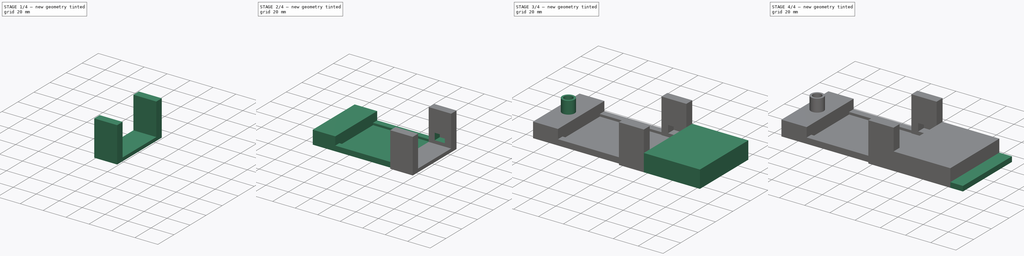
[diagram: build sequence overview — one tinted view per stage of 4, left to right]
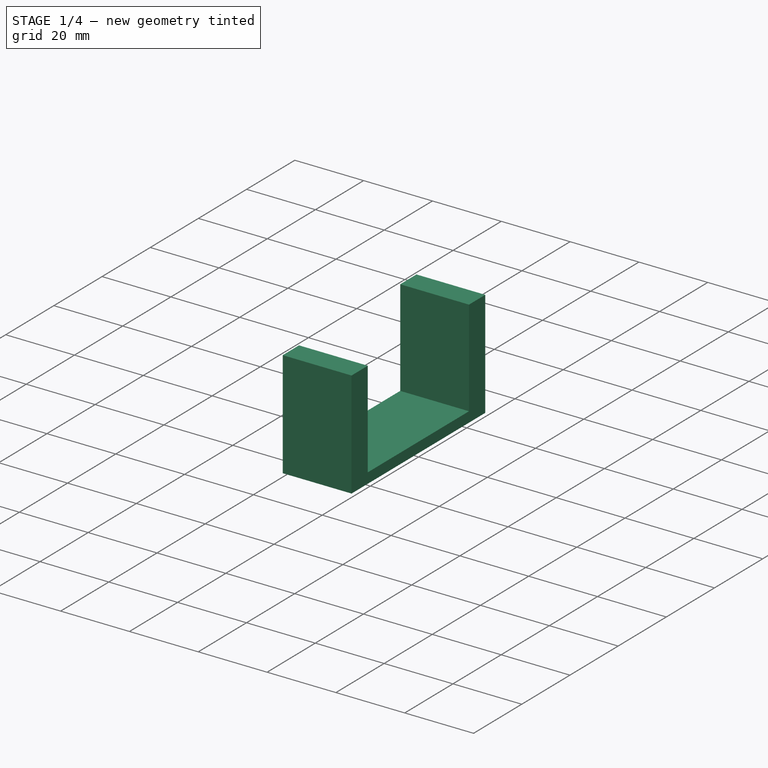
[diagram: stage 1 of 4 — iso view after this stage's code; geometry added in this stage tinted green]
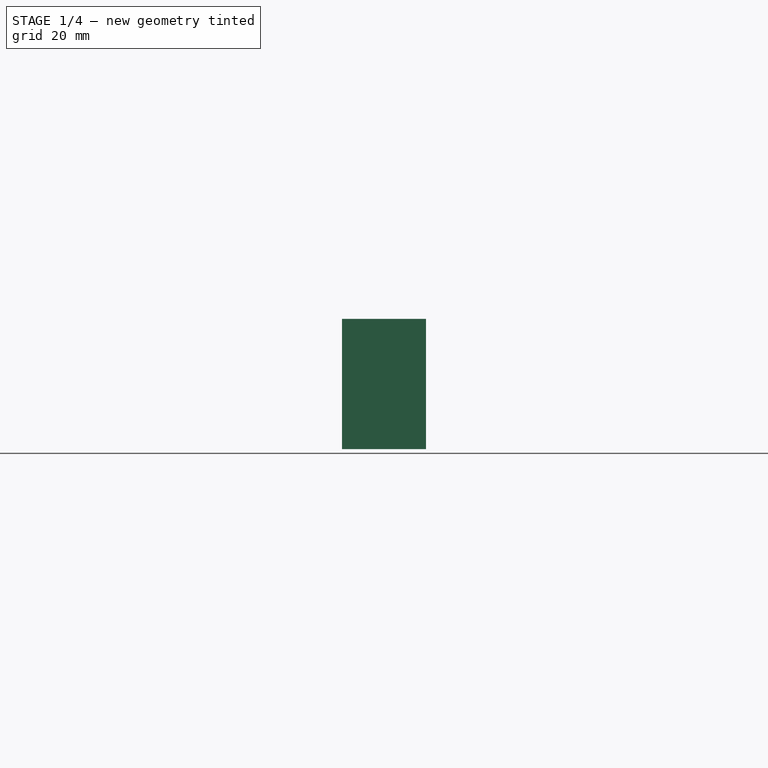
[diagram: stage 1 of 4 — front view after this stage's code; geometry added in this stage tinted green]
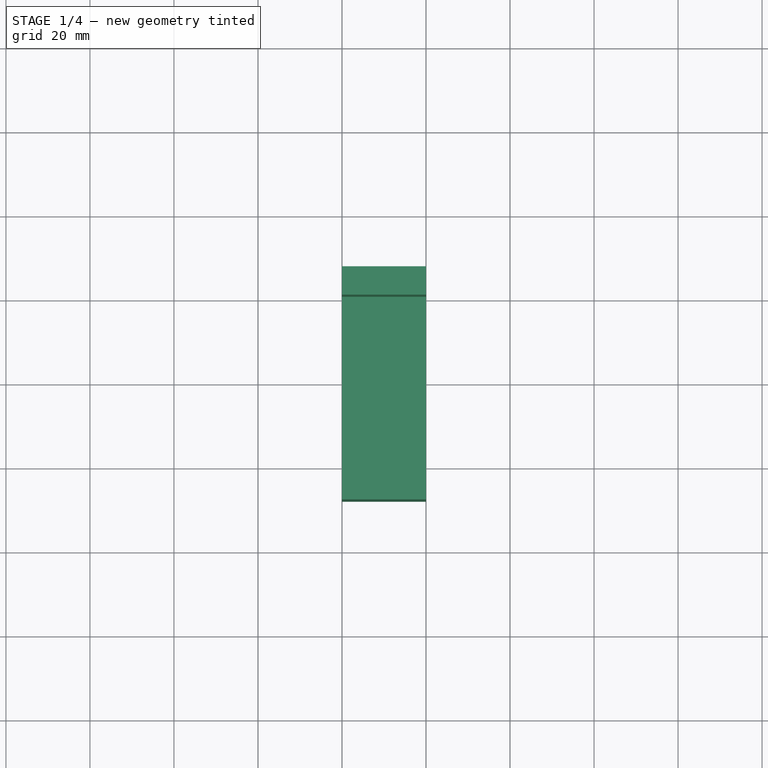
[diagram: stage 1 of 4 — top view after this stage's code; geometry added in this stage tinted green]
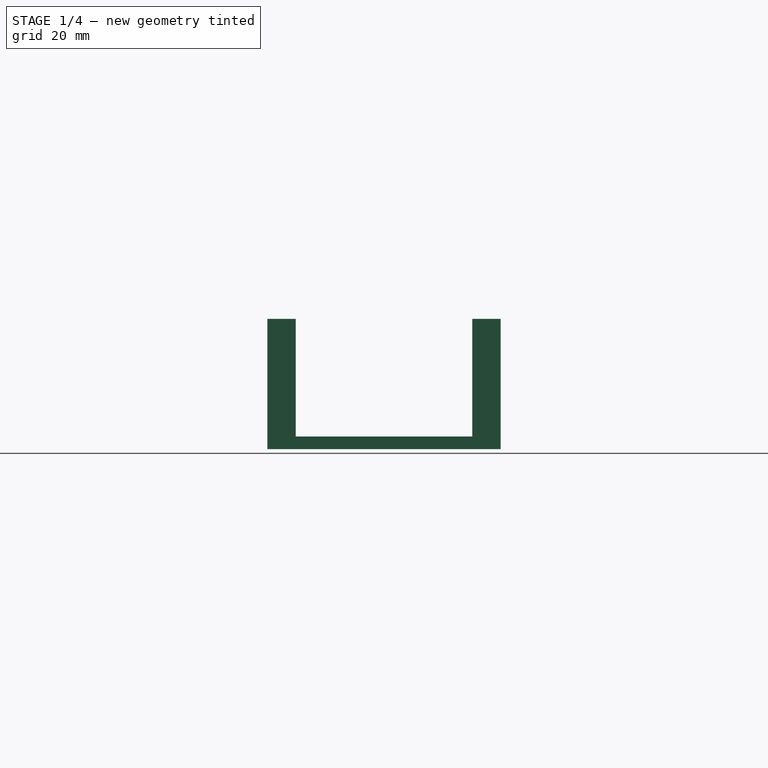
[diagram: stage 1 of 4 — right view after this stage's code; geometry added in this stage tinted green]
FCSTD DOCUMENT  (FreeCAD 0.20R29177 (Git))
Label: ServoHolder_v3
License: All rights reserved
LicenseURL: http://en.wikipedia.org/wiki/All_rights_reserved
objects: Sketcher::SketchObject×9, PartDesign::Pad×6, PartDesign::Pocket×3, PartDesign::Body×1, App::Part×1
note: 28 computed .brp shape members not serialized (recipe doc carries the construction recipe); baked Part::Feature solids carry a one-line shape summary decoded from their .brp

FEATURE [Sketcher::SketchObject] Sketch002  label="ServoHolder002"
  FullyConstrained = false
  MapMode = 4
  Placement = pos=(0,0,0) rot=(0.57735,0.57735,0.57735;2.0944rad)
  sketch-geometry (8):
    g0: LineSegment StartX=-27.8161 StartY=-22.5482 StartZ=0 EndX=27.6839 EndY=-22.5482 EndZ=0
    g1: LineSegment StartX=20.9339 StartY=-19.5482 StartZ=0 EndX=20.9339 EndY=8.45178 EndZ=0
    g2: LineSegment StartX=20.9339 StartY=8.45178 StartZ=0 EndX=27.6839 EndY=8.45178 EndZ=0
    g3: LineSegment StartX=-21.0661 StartY=-19.5482 StartZ=0 EndX=-21.0661 EndY=8.45178 EndZ=0
    g4: LineSegment StartX=-21.0661 StartY=8.45178 StartZ=0 EndX=-27.8161 EndY=8.45178 EndZ=0
    g5: LineSegment StartX=20.9339 StartY=-19.5482 StartZ=0 EndX=-21.0661 EndY=-19.5482 EndZ=0
    g6: LineSegment StartX=-27.8161 StartY=8.45178 StartZ=0 EndX=-27.8161 EndY=-22.5482 EndZ=0
    g7: LineSegment StartX=27.6839 StartY=8.45178 StartZ=0 EndX=27.6839 EndY=-22.5482 EndZ=0
  constraints (22):
    c: Horizontal(g0)
    c: Coincident(g1,g2)
    c: Horizontal(g2)
    c: Vertical(g1)
    c: Coincident(g3,g4)
    c: Horizontal(g4)
    c: Vertical(g3)
    c: Coincident(g5,g1)
    c: Coincident(g5,g3)
    c: Horizontal(g5)
    c: Coincident(g6,g4)
    c: Coincident(g6,g0)
    c: Vertical(g6)
    c: Coincident(g7,g2)
    c: Coincident(g7,g0)
    c: Vertical(g7)
    c: DistanceX(g0,g0) = 55.5
    c: DistanceX(g5,g5) = 42
    c: Equal(g4,g2)
    c: Horizontal(g3,g1)
    c: DistanceY(g0,g1) = 3
    c: DistanceY(g1,g1) = 28
FEATURE [PartDesign::Pad] Pad001  label="ExtrudeServoHolder001"
  Direction = (1,1,1)
  Length = 20
  Length2 = 100
  Placement = pos=(0,0,0) rot=(0.57735,0.57735,0.57735;2.0944rad)
  Profile = -> Sketch002
  Type = 0
FEATURE [Sketcher::SketchObject] Sketch004  label="WireHoleSketch001"
  FullyConstrained = false
  MapMode = 5
  Placement = pos=(4.6e-15,20.9339,0) rot=(0.57735,0.57735,-0.57735;2.0944rad)
  Support = -> [Pad001]
  sketch-geometry (4):
    g0: LineSegment StartX=-5.36505 StartY=-10.7623 StartZ=0 EndX=-14.3651 EndY=-10.7623 EndZ=0
    g1: LineSegment StartX=-14.3651 StartY=-10.7623 StartZ=0 EndX=-14.3651 EndY=-16.7623 EndZ=0
    g2: LineSegment StartX=-14.3651 StartY=-16.7623 StartZ=0 EndX=-5.36505 EndY=-16.7623 EndZ=0
    g3: LineSegment StartX=-5.36505 StartY=-16.7623 StartZ=0 EndX=-5.36505 EndY=-10.7623 EndZ=0
  constraints (10):
    c: Coincident(g1,g2)
    c: Coincident(g2,g3)
    c: Coincident(g3,g0)
    c: Horizontal(g0)
    c: Horizontal(g2)
    c: Vertical(g1)
    c: Vertical(g3)
    c: Coincident(g1,g0)
    c: DistanceX(g0,g0) = 9
    c: DistanceY(g1,g1) = 6
FEATURE [PartDesign::Pocket] Pocket001  label="ServoHolder001"
  BaseFeature = -> Pad001
  Direction = (1e-16,1,-1e-16)
  Length = 30
  Length2 = 100
  Midplane = true
  Placement = pos=(0,0,0) rot=(0.57735,0.57735,0.57735;2.0944rad)
  Profile = -> Sketch004
  ReferenceAxis = -> Sketch004 [N_Axis]
  Type = 0
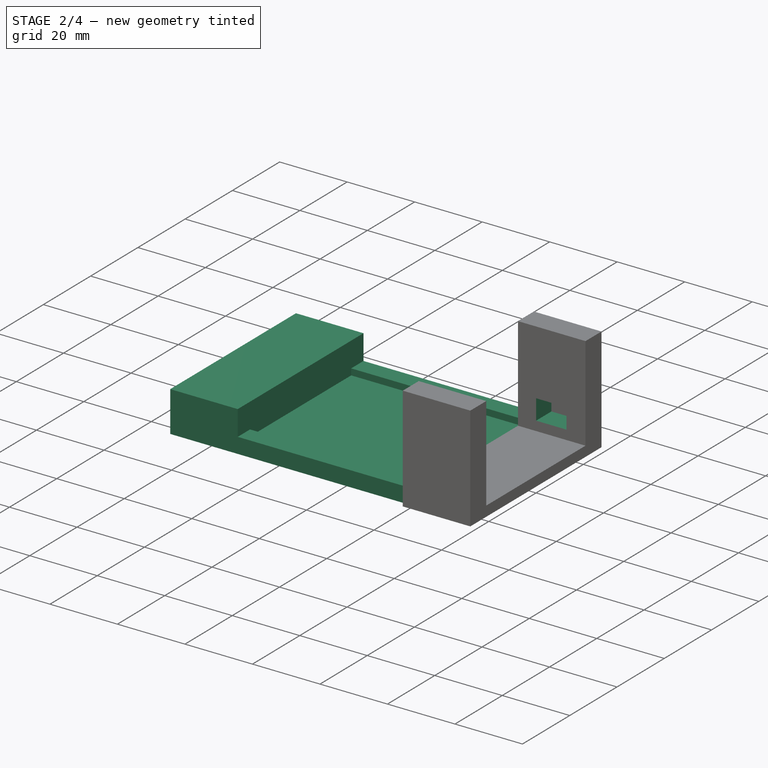
[diagram: stage 2 of 4 — iso view after this stage's code; geometry added in this stage tinted green]
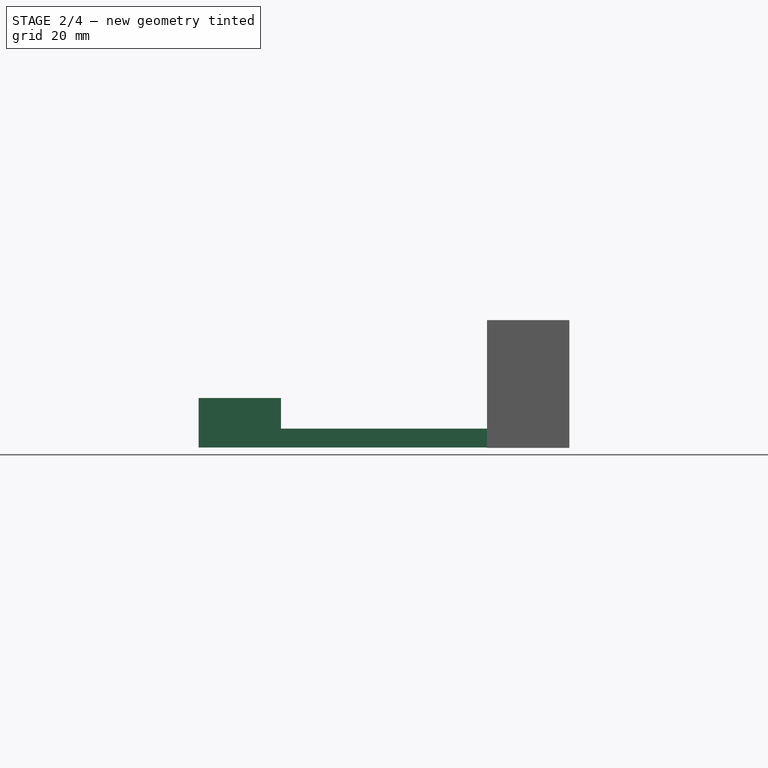
[diagram: stage 2 of 4 — front view after this stage's code; geometry added in this stage tinted green]
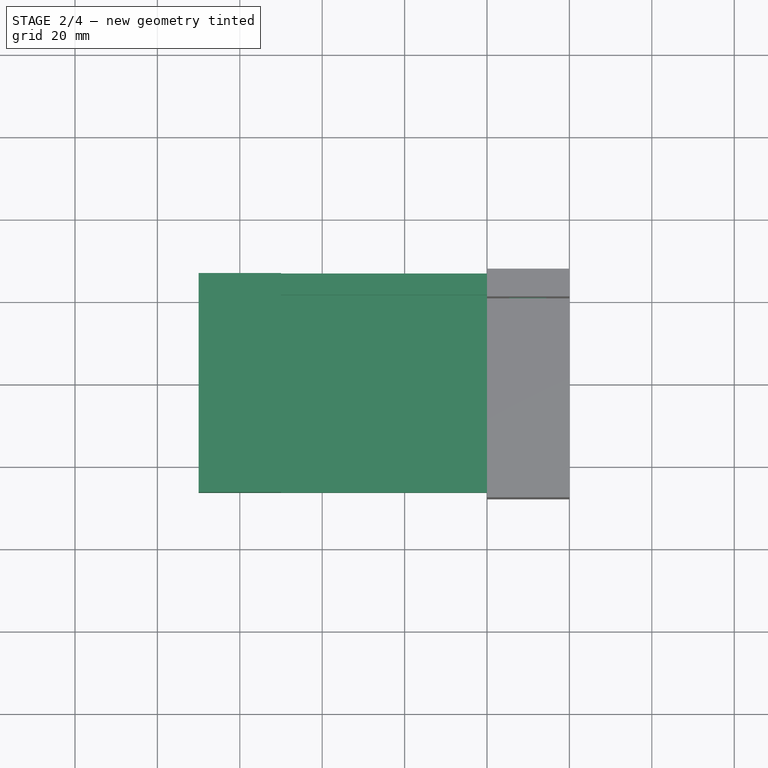
[diagram: stage 2 of 4 — top view after this stage's code; geometry added in this stage tinted green]
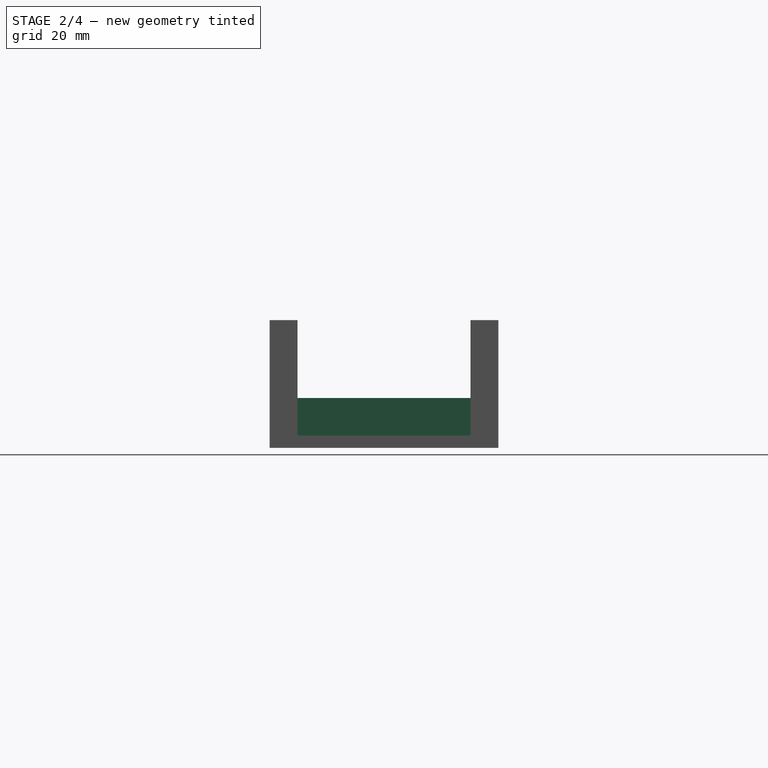
[diagram: stage 2 of 4 — right view after this stage's code; geometry added in this stage tinted green]
FEATURE [Sketcher::SketchObject] Sketch003  label="HorizontalSupportHole"
  FullyConstrained = false
  MapMode = 5
  Placement = pos=(-6.1e-15,-27.8161,0) rot=(0.57735,0.57735,-0.57735;2.0944rad)
  Support = -> [Pocket001]
  sketch-geometry (8):
    g0: LineSegment StartX=-21.0477 StartY=17.881 StartZ=0 EndX=-26.2545 EndY=17.881 EndZ=0
    g1: LineSegment StartX=-26.2545 StartY=17.881 StartZ=0 EndX=-26.2545 EndY=22.4547 EndZ=0
    g2: LineSegment StartX=26.9512 StartY=17.881 StartZ=0 EndX=21.7444 EndY=17.881 EndZ=0
    g3: LineSegment StartX=26.9512 StartY=22.4547 StartZ=0 EndX=26.9512 EndY=17.881 EndZ=0
    g4: LineSegment StartX=21.7444 StartY=19.7543 StartZ=0 EndX=21.7444 EndY=17.881 EndZ=0
    g5: LineSegment StartX=-21.0477 StartY=17.881 StartZ=0 EndX=-21.0477 EndY=19.7543 EndZ=0
    g6: LineSegment StartX=-21.0477 StartY=19.7543 StartZ=0 EndX=21.7444 EndY=19.7543 EndZ=0
    g7: LineSegment StartX=-26.2545 StartY=22.4547 StartZ=0 EndX=26.9512 EndY=22.4547 EndZ=0
  constraints (18):
    c: Coincident(g0,g1)
    c: Horizontal(g0)
    c: Vertical(g1)
    c: Coincident(g3,g2)
    c: Horizontal(g2)
    c: Vertical(g3)
    c: Coincident(g4,g2)
    c: Coincident(g6,g5)
    c: Coincident(g6,g4)
    c: Horizontal(g6)
    c: Coincident(g1,g7)
    c: Horizontal(g7)
    c: Coincident(g3,g7)
    c: Equal(g3,g1)
    c: Equal(g0,g2)
    c: Coincident(g0,g5)
    c: Vertical(g5)
    c: Vertical(g4)
FEATURE [PartDesign::Pad] Pad006
  BaseFeature = -> Pocket001
  Direction = (-1e-16,-1,1e-16)
  Length = 50
  Length2 = 100
  Placement = pos=(0,0,0) rot=(0.57735,0.57735,0.57735;2.0944rad)
  Profile = -> Sketch003
  Type = 0
FEATURE [Sketcher::SketchObject] Sketch013
  ExternalGeometry = -> [Pad006]
  FullyConstrained = false
  MapMode = 5
  Placement = pos=(-50,1.11e-14,-5.6e-15) rot=(-0.57735,-0.57735,0.57735;2.0944rad)
  Support = -> [Pad006]
  sketch-geometry (4):
    g0: LineSegment StartX=26.9512 StartY=22.4547 StartZ=0 EndX=-26.2545 EndY=22.4547 EndZ=0
    g1: LineSegment StartX=-26.2545 StartY=22.4547 StartZ=0 EndX=-26.2545 EndY=10.8798 EndZ=0
    g2: LineSegment StartX=-26.2545 StartY=10.8798 StartZ=0 EndX=26.9512 EndY=10.8798 EndZ=0
    g3: LineSegment StartX=26.9512 StartY=10.8798 StartZ=0 EndX=26.9512 EndY=22.4547 EndZ=0
  constraints (9):
    c: Coincident(g0,g1)
    c: Coincident(g1,g2)
    c: Coincident(g2,g3)
    c: Coincident(g3,g0)
    c: Vertical(g1)
    c: Coincident(g0,g-3)
    c: Horizontal(g2)
    c: Coincident(g0,g-4)
    c: Vertical(g3)
FEATURE [PartDesign::Pad] Pad007
  BaseFeature = -> Pad006
  Direction = (-1,2e-16,-2e-16)
  Length = 20
  Length2 = 100
  Placement = pos=(0,0,0) rot=(0.57735,0.57735,0.57735;2.0944rad)
  Profile = -> Sketch013
  Type = 0
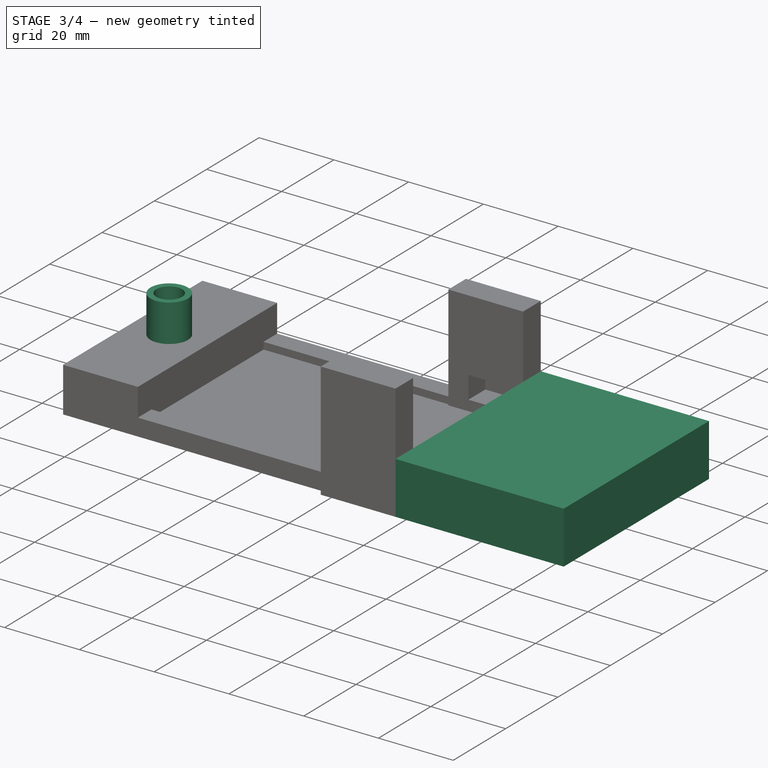
[diagram: stage 3 of 4 — iso view after this stage's code; geometry added in this stage tinted green]
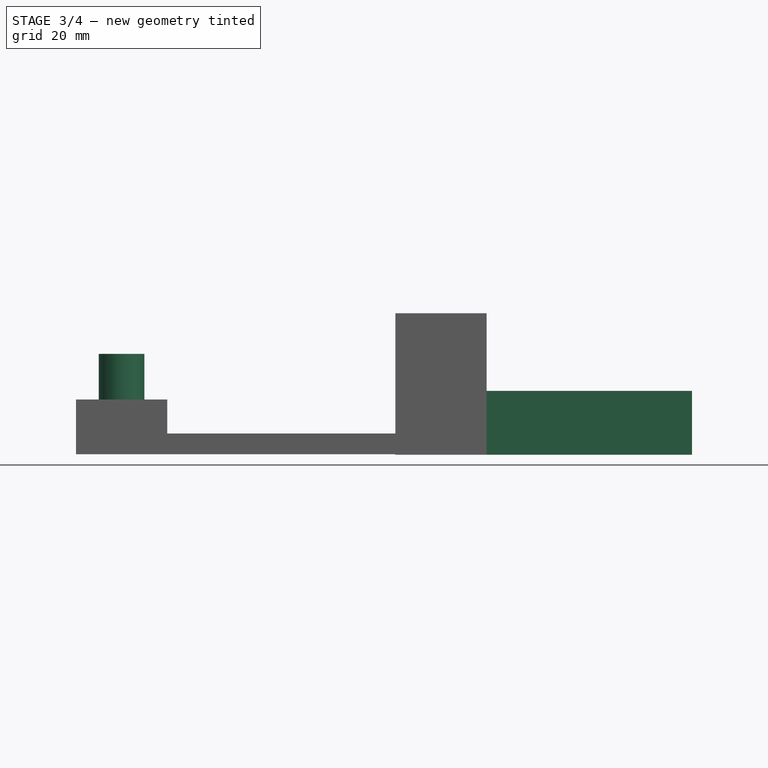
[diagram: stage 3 of 4 — front view after this stage's code; geometry added in this stage tinted green]
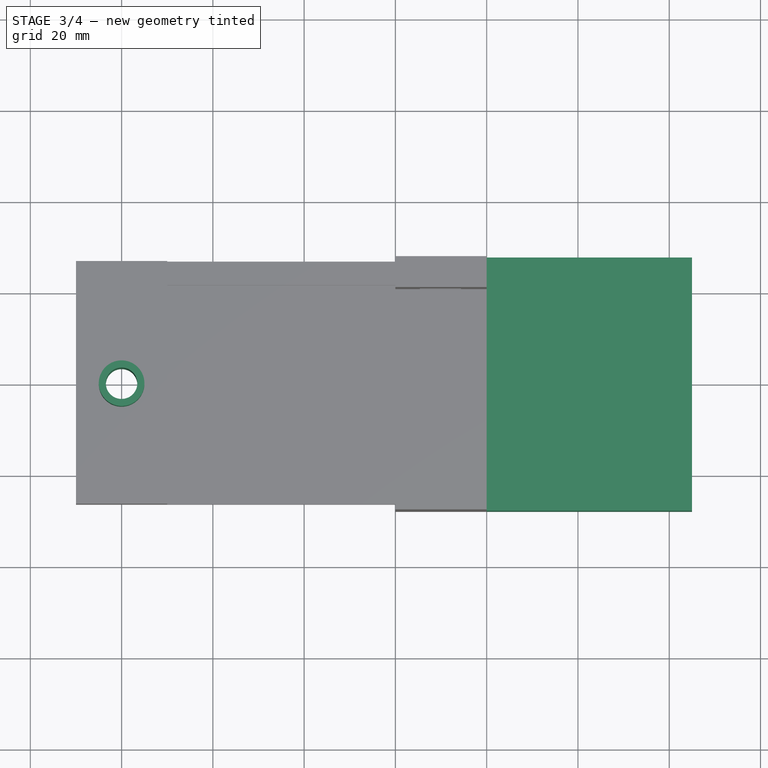
[diagram: stage 3 of 4 — top view after this stage's code; geometry added in this stage tinted green]
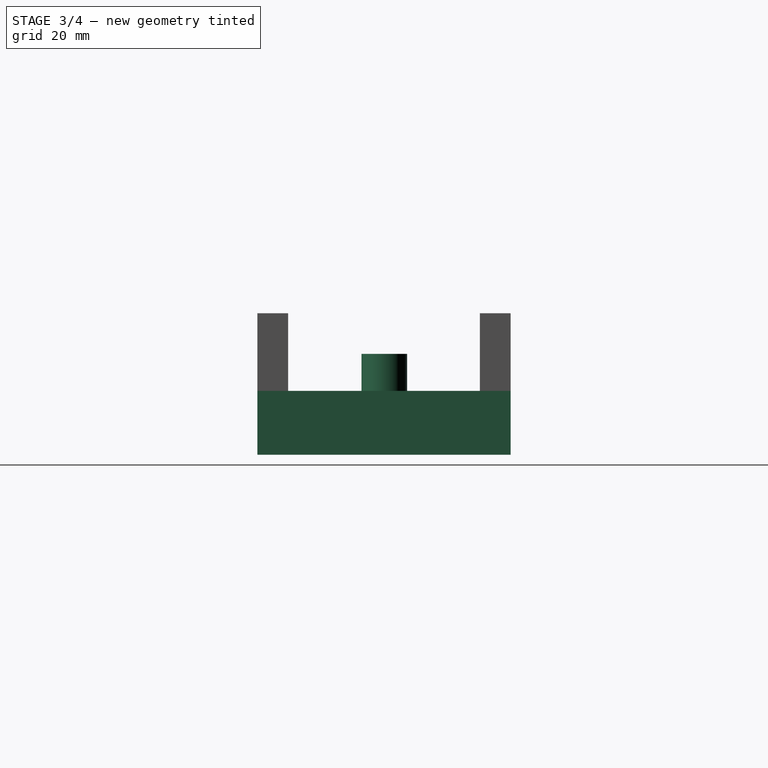
[diagram: stage 3 of 4 — right view after this stage's code; geometry added in this stage tinted green]
FEATURE [Sketcher::SketchObject] Sketch014
  ExternalGeometry = -> [Pad007,Sketch013]
  FullyConstrained = true
  MapMode = 5
  Placement = pos=(1.7e-15,-2.3e-15,-10.4532) rot=(0,0,-1;1.5708rad)
  Support = -> [Pad007]
  sketch-geometry (2):
    g0: Circle CenterX=0 CenterY=-60 CenterZ=0 NormalX=0 NormalY=0 NormalZ=1 AngleXU=0 Radius=5
    g1: LineSegment StartX=0 StartY=0 StartZ=0 EndX=0 EndY=-60 EndZ=0
  constraints (5):
    c: Radius(g0) = 5
    c: PointOnObject(g0,g-2)
    c: Coincident(g-1,g1)
    c: Coincident(g0,g1)
    c: DistanceY(g1,g1) = 60
FEATURE [PartDesign::Pad] Pad008
  BaseFeature = -> Pad007
  Direction = (-2e-16,2e-16,1)
  Length = 10
  Length2 = 100
  Placement = pos=(0,0,0) rot=(0.57735,0.57735,0.57735;2.0944rad)
  Profile = -> Sketch014
  Type = 0
FEATURE [Sketcher::SketchObject] Sketch015
  ExternalGeometry = -> [Pad008]
  FullyConstrained = true
  MapMode = 5
  Placement = pos=(1e-16,-1e-16,-0.453243) rot=(0,0,-1;1.5708rad)
  Support = -> [Pad008]
  sketch-geometry (1):
    g0: Circle CenterX=-1.33e-14 CenterY=-60 CenterZ=0 NormalX=0 NormalY=0 NormalZ=1 AngleXU=0 Radius=3.45
  constraints (2):
    c: Diameter(g0) = 6.9
    c: Coincident(g-4,g0)
FEATURE [PartDesign::Pocket] Pocket005
  BaseFeature = -> Pad008
  Direction = (2e-16,-2e-16,-1)
  Length = 25
  Length2 = 100
  Placement = pos=(0,0,0) rot=(0.57735,0.57735,0.57735;2.0944rad)
  Profile = -> Sketch015
  Type = 0
FEATURE [Sketcher::SketchObject] Sketch016
  ExternalGeometry = -> [Pocket005]
  FullyConstrained = true
  MapMode = 5
  Placement = pos=(20,-2.22e-14,0) rot=(0.57735,0.57735,0.57735;2.0944rad)
  Support = -> [Pocket005]
  sketch-geometry (4):
    g0: LineSegment StartX=-27.8161 StartY=-22.5482 StartZ=0 EndX=27.6839 EndY=-22.5482 EndZ=0
    g1: LineSegment StartX=27.6839 StartY=-22.5482 StartZ=0 EndX=27.6839 EndY=-8.54822 EndZ=0
    g2: LineSegment StartX=27.6839 StartY=-8.54822 StartZ=0 EndX=-27.8161 EndY=-8.54822 EndZ=0
    g3: LineSegment StartX=-27.8161 StartY=-8.54822 StartZ=0 EndX=-27.8161 EndY=-22.5482 EndZ=0
  constraints (10):
    c: Coincident(g0,g1)
    c: Coincident(g1,g2)
    c: Coincident(g2,g3)
    c: Coincident(g3,g0)
    c: Horizontal(g2)
    c: Vertical(g1)
    c: Vertical(g3)
    c: Coincident(g0,g-3)
    c: Coincident(g0,g-4)
    c: DistanceY(g3,g3) = 14
FEATURE [PartDesign::Pad] Pad009
  BaseFeature = -> Pocket005
  Direction = (1,-1e-15,-1e-16)
  Length = 45
  Length2 = 100
  Placement = pos=(0,0,0) rot=(0.57735,0.57735,0.57735;2.0944rad)
  Profile = -> Sketch016
  Type = 0
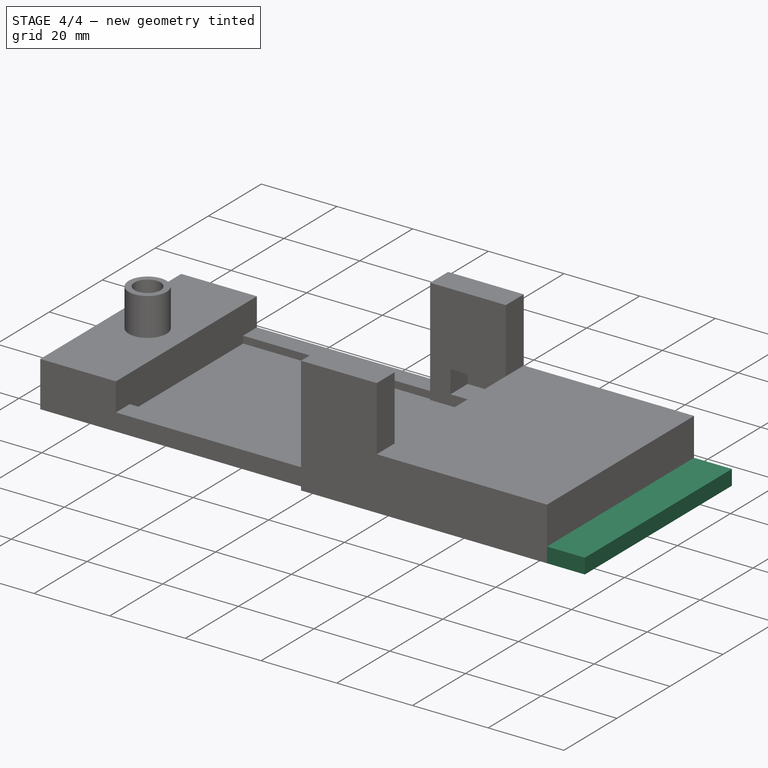
[diagram: stage 4 of 4 — iso view after this stage's code; geometry added in this stage tinted green]
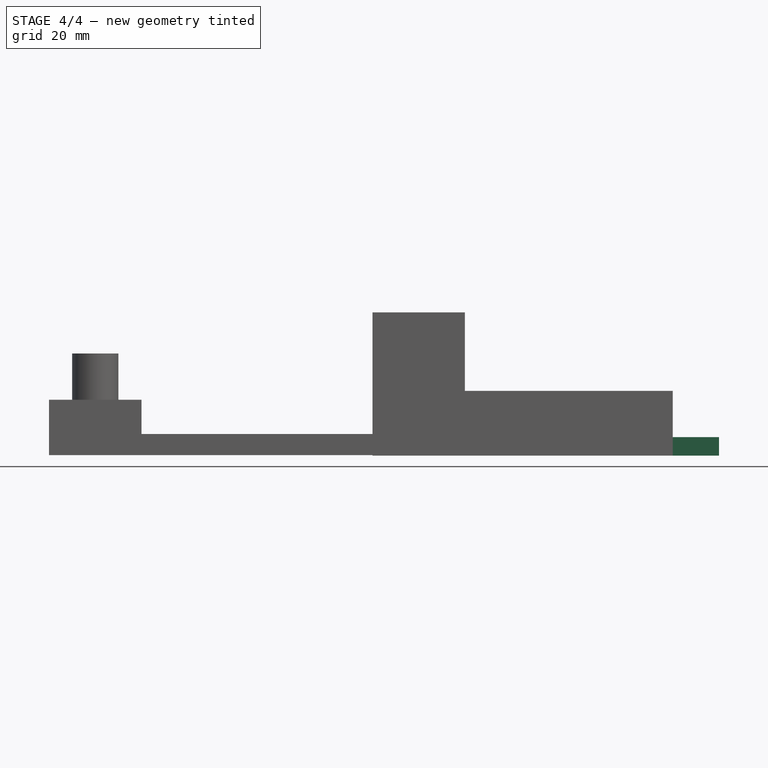
[diagram: stage 4 of 4 — front view after this stage's code; geometry added in this stage tinted green]
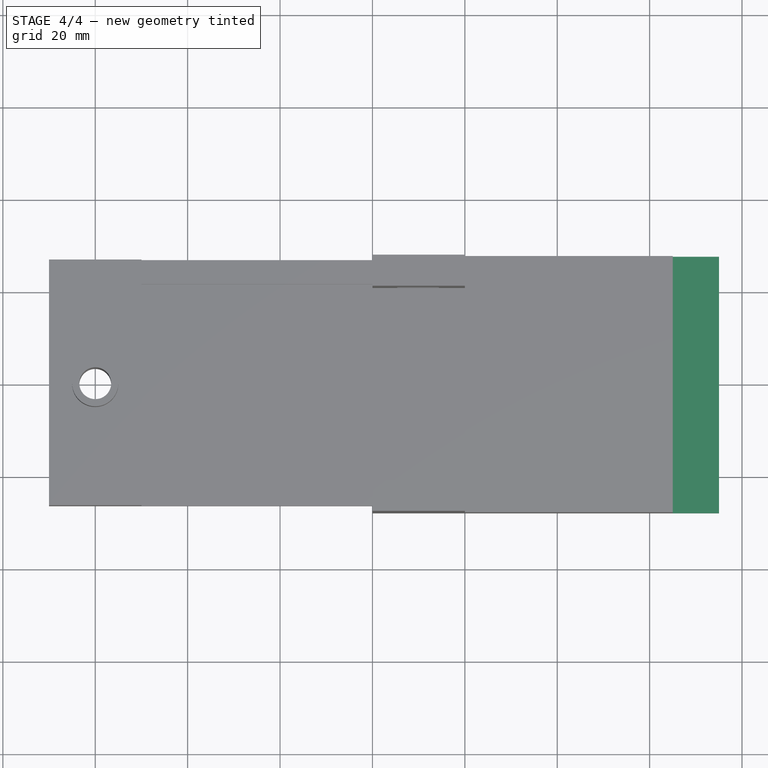
[diagram: stage 4 of 4 — top view after this stage's code; geometry added in this stage tinted green]
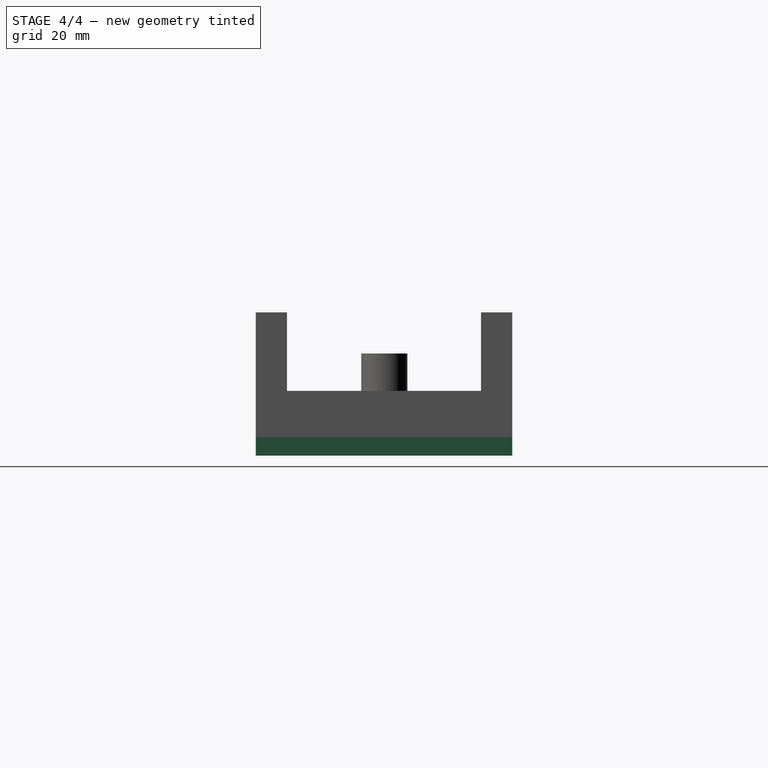
[diagram: stage 4 of 4 — right view after this stage's code; geometry added in this stage tinted green]
FEATURE [Sketcher::SketchObject] Sketch
  ExternalGeometry = -> [Pad009]
  FullyConstrained = true
  MapMode = 5
  Placement = pos=(-2.5e-15,-2.5e-15,-22.5482) rot=(0.707107,0.707107,0;3.14159rad)
  Support = -> [Pad009]
  sketch-geometry (10):
    g0: LineSegment StartX=-22.6661 StartY=60.3 StartZ=0 EndX=-12.5661 EndY=60.3 EndZ=0
    g1: LineSegment StartX=-12.5661 StartY=60.3 StartZ=0 EndX=-12.5661 EndY=40 EndZ=0
    g2: LineSegment StartX=-12.5661 StartY=40 StartZ=0 EndX=-22.6661 EndY=40 EndZ=0
    g3: LineSegment StartX=-22.6661 StartY=40 StartZ=0 EndX=-22.6661 EndY=60.3 EndZ=0
    g4: LineSegment StartX=12.4339 StartY=60.3 StartZ=0 EndX=22.5339 EndY=60.3 EndZ=0
    g5: LineSegment StartX=22.5339 StartY=60.3 StartZ=0 EndX=22.5339 EndY=40 EndZ=0
    g6: LineSegment StartX=22.5339 StartY=40 StartZ=0 EndX=12.4339 EndY=40 EndZ=0
    g7: LineSegment StartX=12.4339 StartY=40 StartZ=0 EndX=12.4339 EndY=60.3 EndZ=0
    g8: LineSegment StartX=-22.6661 StartY=60.3 StartZ=0 EndX=-27.8161 EndY=60.3 EndZ=0
    g9: LineSegment StartX=22.5339 StartY=60.3 StartZ=0 EndX=27.6839 EndY=60.3 EndZ=0
  constraints (30):
    c: Coincident(g0,g1)
    c: Coincident(g1,g2)
    c: Coincident(g2,g3)
    c: Coincident(g3,g0)
    c: Horizontal(g0)
    c: Horizontal(g2)
    c: Vertical(g1)
    c: Vertical(g3)
    c: DistanceY(g-3,g2) = 100
    c: Coincident(g4,g5)
    c: Coincident(g5,g6)
    c: Coincident(g6,g7)
    c: Coincident(g7,g4)
    c: Horizontal(g4)
    c: Horizontal(g6)
    c: Vertical(g5)
    c: Vertical(g7)
    c: Horizontal(g1,g6)
    c: Horizontal(g0,g4)
    c: Equal(g2,g6)
    c: DistanceX(g0,g0) = 10.1
    c: DistanceX(g0,g4) = 45.2
    c: Coincident(g8,g0)
    c: PointOnObject(g8,g-5)
    c: Horizontal(g8)
    c: Coincident(g9,g4)
    c: PointOnObject(g9,g-4)
    c: Horizontal(g9)
    c: Equal(g8,g9)
    c: DistanceY(g5,g5) = 20.3
FEATURE [PartDesign::Pocket] Pocket
  BaseFeature = -> Pad009
  Direction = (1e-16,1e-16,1)
  Length = 10
  Length2 = 100
  Placement = pos=(0,0,0) rot=(0.57735,0.57735,0.57735;2.0944rad)
  Profile = -> Sketch
  Type = 0
FEATURE [Sketcher::SketchObject] Sketch017
  ExternalGeometry = -> [Pocket]
  FullyConstrained = true
  MapMode = 5
  Placement = pos=(65,-8.71e-14,-1.65e-14) rot=(0.57735,0.57735,0.57735;2.0944rad)
  Support = -> [Pocket]
  sketch-geometry (4):
    g0: LineSegment StartX=27.6839 StartY=-22.5482 StartZ=0 EndX=27.6839 EndY=-18.5482 EndZ=0
    g1: LineSegment StartX=-27.8161 StartY=-18.5482 StartZ=0 EndX=-27.8161 EndY=-22.5482 EndZ=0
    g2: LineSegment StartX=-27.8161 StartY=-18.5482 StartZ=0 EndX=27.6839 EndY=-18.5482 EndZ=0
    g3: LineSegment StartX=-27.8161 StartY=-22.5482 StartZ=0 EndX=27.6839 EndY=-22.5482 EndZ=0
  constraints (10):
    c: Vertical(g0)
    c: Vertical(g1)
    c: DistanceY(g1,g1) = 4
    c: Coincident(g2,g0)
    c: Horizontal(g2)
    c: Coincident(g2,g1)
    c: Coincident(g1,g-3)
    c: Coincident(g0,g-3)
    c: Coincident(g3,g1)
    c: Coincident(g3,g0)
FEATURE [PartDesign::Pad] Pad
  BaseFeature = -> Pocket
  Direction = (1,-1.2e-15,-3e-16)
  Length = 10
  Length2 = 100
  Placement = pos=(0,0,0) rot=(0.57735,0.57735,0.57735;2.0944rad)
  Profile = -> Sketch017
  Type = 0
FEATURE [PartDesign::Body] Body001
  Group = -> [Sketch004,Sketch002,Pad001,Pocket001,Sketch003,Pad006,Sketch013,Pad007,Sketch014,Pad008,Sketch015,Pocket005,Sketch016,Pad009,Sketch,Pocket,Sketch017,Pad]
  Origin = -> Origin002
  Tip = -> Pad
FEATURE [App::Part] Part001  label="ServoHolderPart"
  Group = -> [Body001]
  Origin = -> Origin003
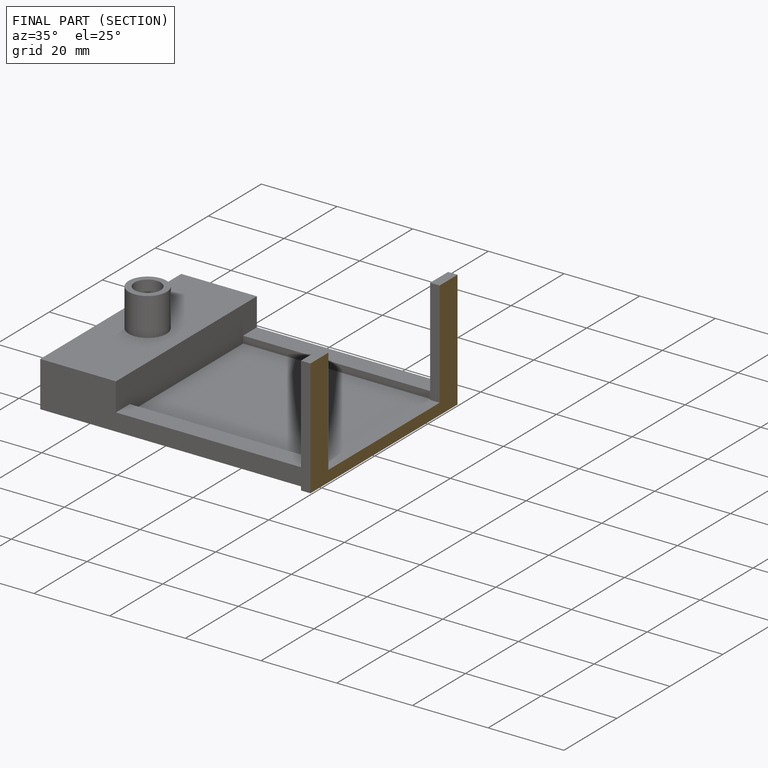
[diagram: finished part — half-section view (interior)]
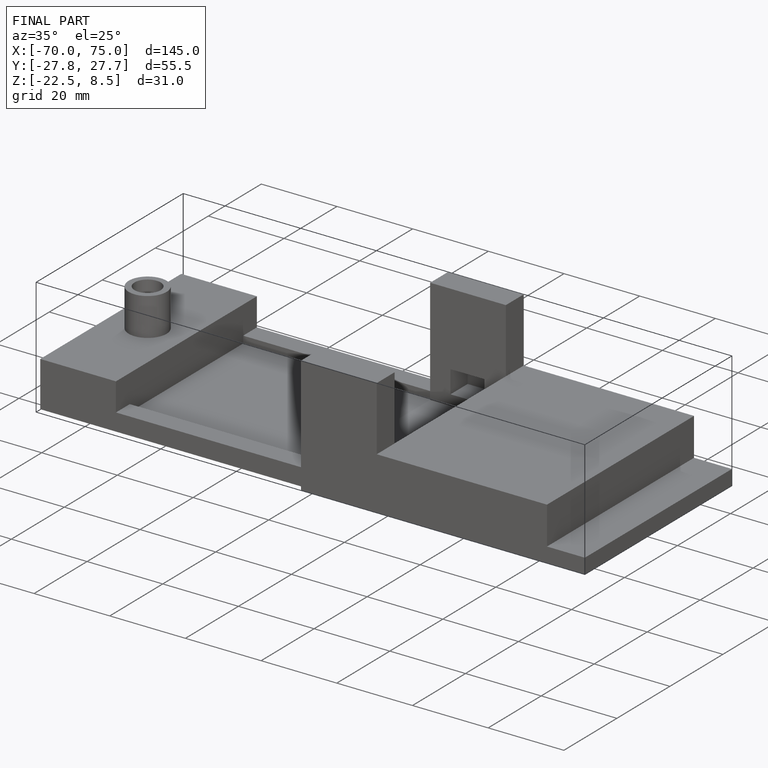
[diagram: finished part — iso view with bounding-box wireframe]
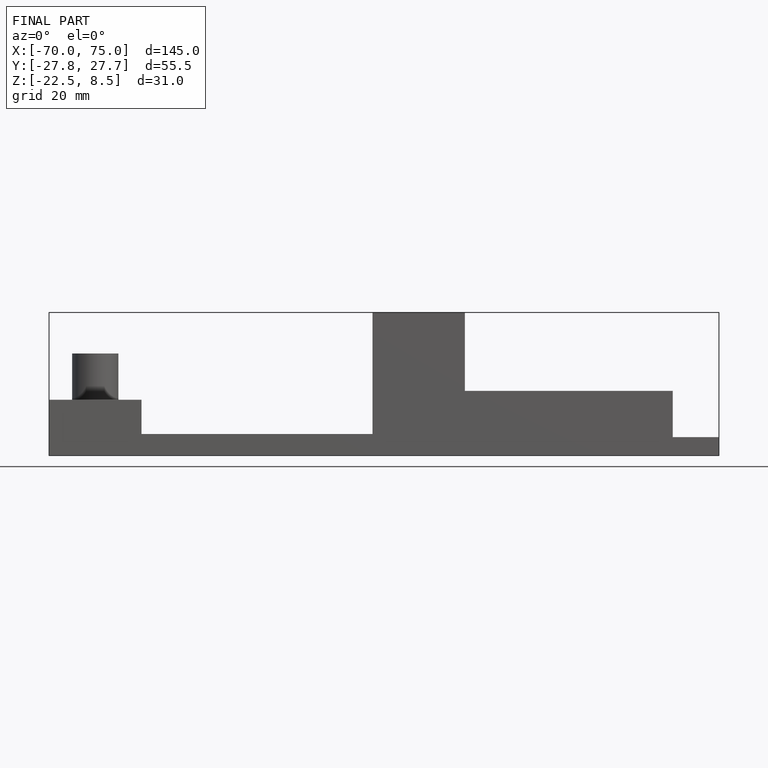
[diagram: finished part — front view with bounding-box wireframe]
